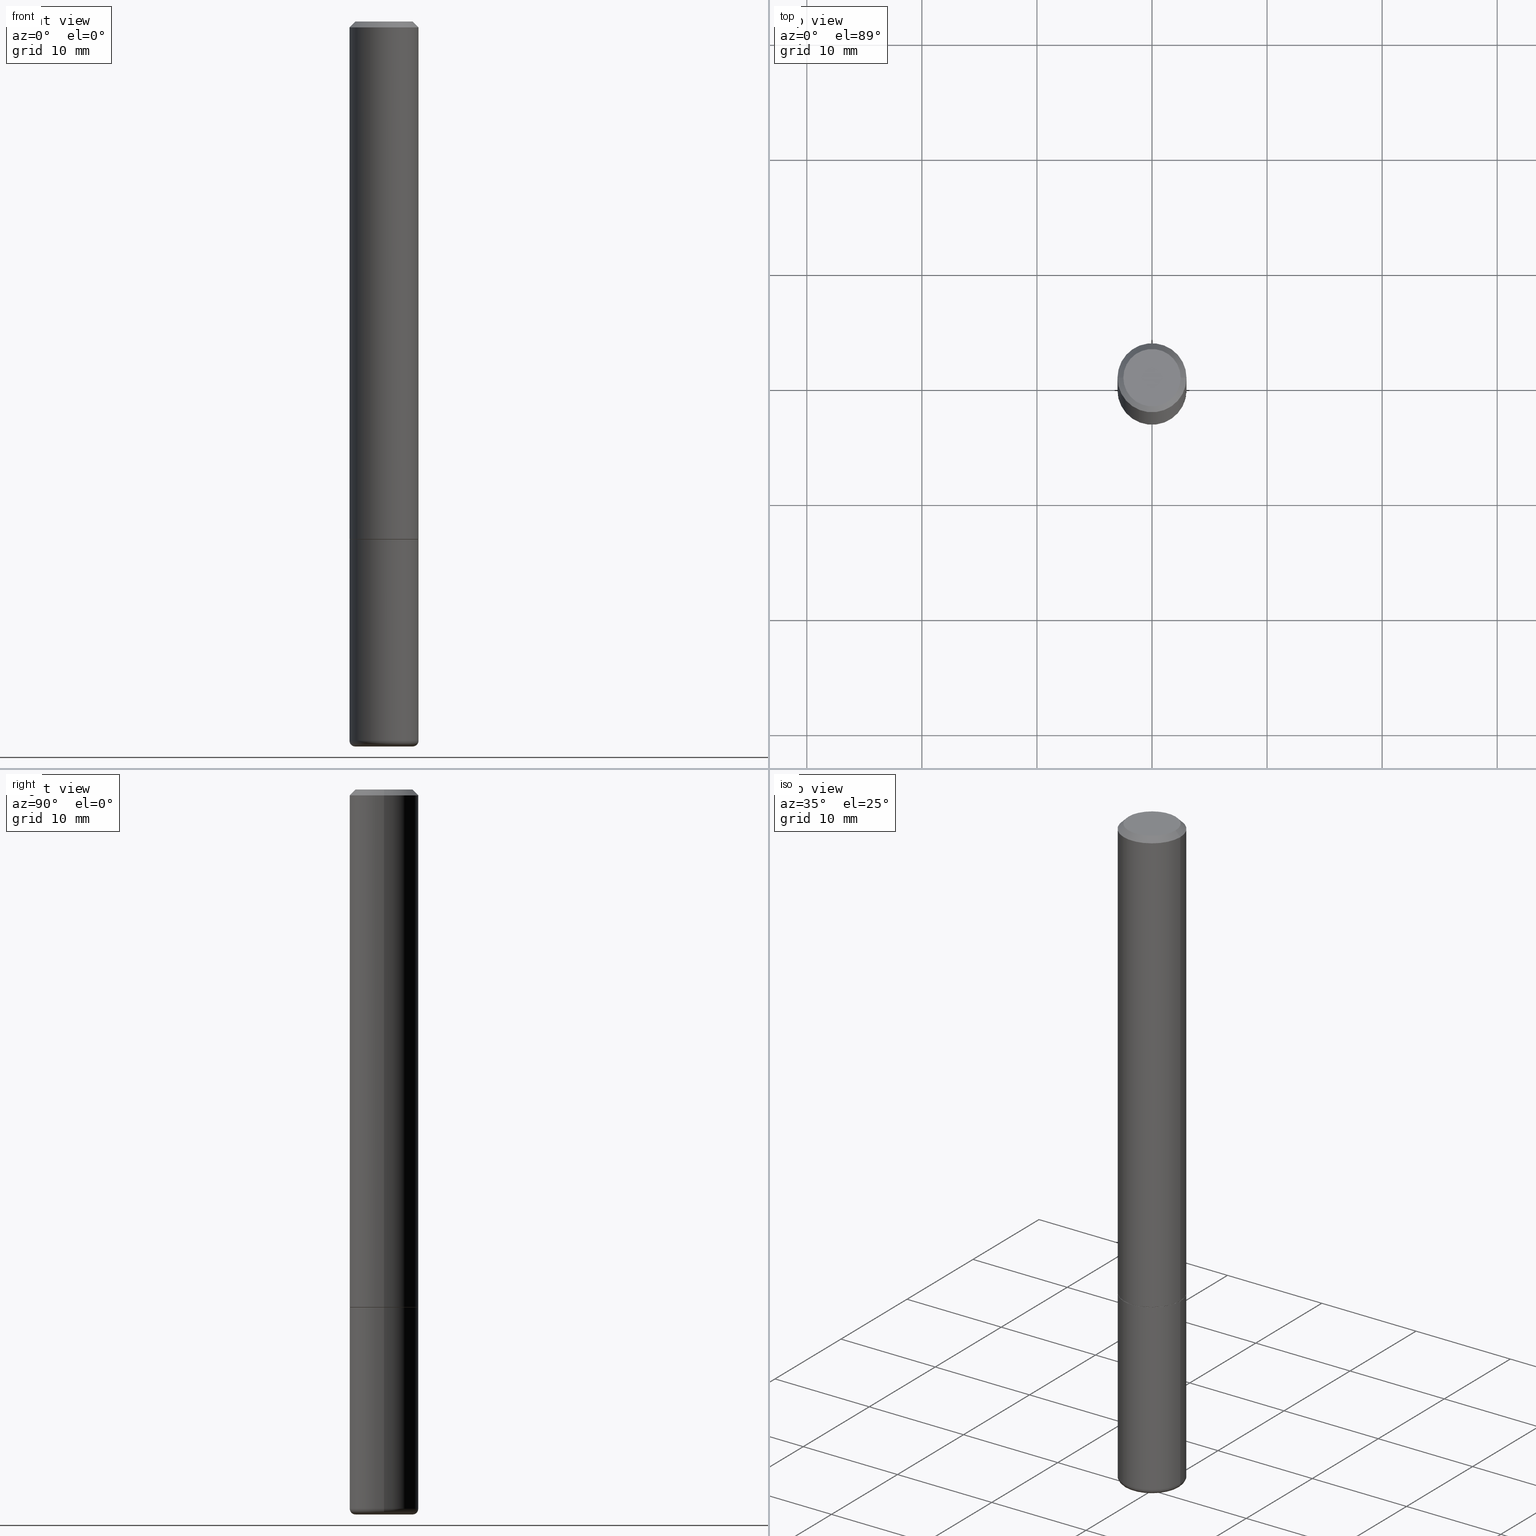
[diagram: canonical four-view strip — front | top / right | iso, engineering-drawing reading convention]
A machine part, canonical four-view strip (front | top / right | iso — engineering-drawing reading convention). The complete STEP part file that produces these views, byte-faithful:
ISO-10303-21;
HEADER;
FILE_DESCRIPTION (( 'STEP AP203' ),
    '1' );
FILE_NAME ('74326.STEP',
    '2024-03-06T15:08:03',
    ( '' ),
    ( '' ),
    'SwSTEP 2.0',
    'SolidWorks 2023',
    '' );
FILE_SCHEMA (( 'CONFIG_CONTROL_DESIGN' ));
ENDSEC;

DATA;
#1 = EDGE_CURVE ( 'NONE', #340, #39, #16, .T. ) ;
#2 = CC_DESIGN_PERSON_AND_ORGANIZATION_ASSIGNMENT ( #364, #300, ( #65 ) ) ;
#3 = DATE_TIME_ROLE ( 'classification_date' ) ;
#4 = EDGE_LOOP ( 'NONE', ( #10, #243, #399, #273 ) ) ;
#5 = PRODUCT ( '74326', '74326', '', ( #346 ) ) ;
#6 = ORIENTED_EDGE ( 'NONE', *, *, #185, .F. ) ;
#7 = CIRCLE ( 'NONE', #304, 0.09809999999999986786 ) ;
#8 = AXIS2_PLACEMENT_3D ( 'NONE', #19, #52, #182 ) ;
#9 = SECURITY_CLASSIFICATION ( '', '', #299 ) ;
#10 = ORIENTED_EDGE ( 'NONE', *, *, #274, .F. ) ;
#11 = ORIENTED_EDGE ( 'NONE', *, *, #292, .F. ) ;
#12 = LENGTH_MEASURE_WITH_UNIT ( LENGTH_MEASURE( 0.02539999999999999897 ), #176 );
#13 = COORDINATED_UNIVERSAL_TIME_OFFSET ( 5, 0, .BEHIND. ) ;
#14 = ORIENTED_EDGE ( 'NONE', *, *, #64, .T. ) ;
#15 = PERSON_AND_ORGANIZATION ( #336, #367 ) ;
#16 = CIRCLE ( 'NONE', #235, 0.01970000000000002999 ) ;
#17 = ORIENTED_EDGE ( 'NONE', *, *, #138, .T. ) ;
#18 = DIRECTION ( 'NONE',  ( -2.445468806185136597E-29, 3.491481338843145583E-15, 1.000000000000000000 ) ) ;
#19 = CARTESIAN_POINT ( 'NONE',  ( 4.890937612370288923E-31, -6.982962677686312563E-17, -0.02000000000000006287 ) ) ;
#20 = DIRECTION ( 'NONE',  ( -2.445468806185136597E-29, 3.491481338843145583E-15, 1.000000000000000000 ) ) ;
#21 = DIRECTION ( 'NONE',  ( 1.000000000000000000, -6.982962677686266711E-15, 0.000000000000000000 ) ) ;
#22 = VECTOR ( 'NONE', #192, 39.37007874015748143 ) ;
#23 = APPLICATION_CONTEXT ( 'configuration controlled 3d designs of mechanical parts and assemblies' ) ;
#24 = FACE_OUTER_BOUND ( 'NONE', #242, .T. ) ;
#25 = AXIS2_PLACEMENT_3D ( 'NONE', #250, #152, #49 ) ;
#26 = FACE_OUTER_BOUND ( 'NONE', #133, .T. ) ;
#27 = PRODUCT_DEFINITION_SHAPE ( 'NONE', 'NONE',  #92 ) ;
#28 = DIRECTION ( 'NONE',  ( 1.000000000000000000, -6.982962677686266711E-15, 4.876176775795936353E-29 ) ) ;
#29 = FACE_OUTER_BOUND ( 'NONE', #142, .T. ) ;
#30 = DIRECTION ( 'NONE',  ( -2.445468806185136877E-29, 3.491481338843145188E-15, 1.000000000000000000 ) ) ;
#31 = CARTESIAN_POINT ( 'NONE',  ( 0.1181000000000000383, -8.800544403136812319E-16, -0.02000000000000006287 ) ) ;
#32 = CIRCLE ( 'NONE', #50, 0.01970000000000002999 ) ;
#33 = EDGE_LOOP ( 'NONE', ( #71, #139, #371, #178 ) ) ;
#34 = EDGE_CURVE ( 'NONE', #308, #306, #119, .T. ) ;
#35 = APPROVAL_STATUS ( 'not_yet_approved' ) ;
#36 = PERSON_AND_ORGANIZATION ( #336, #367 ) ;
#37 = CIRCLE ( 'NONE', #136, 0.09840000000000000135 ) ;
#38 = APPROVAL_DATE_TIME ( #101, #239 ) ;
#39 = VERTEX_POINT ( 'NONE', #348 ) ;
#40 = VERTEX_POINT ( 'NONE', #158 ) ;
#41 = ORIENTED_EDGE ( 'NONE', *, *, #296, .T. ) ;
#42 = ORIENTED_EDGE ( 'NONE', *, *, #220, .F. ) ;
#43 = DIRECTION ( 'NONE',  ( -1.000000000000000000, 6.982962677686265922E-15, -4.876176775795935793E-29 ) ) ;
#44 = MANIFOLD_SOLID_BREP ( 'Body-Move/Copy2[2]', #84 ) ;
#45 = ADVANCED_FACE ( 'NONE', ( #323 ), #390, .T. ) ;
#46 = ORIENTED_EDGE ( 'NONE', *, *, #74, .T. ) ;
#47 = PERSON_AND_ORGANIZATION ( #336, #367 ) ;
#48 = DIRECTION ( 'NONE',  ( -1.000000000000000000, 6.982962677686266711E-15, 0.000000000000000000 ) ) ;
#49 = DIRECTION ( 'NONE',  ( 1.000000000000000000, -6.982962677686264344E-15, 0.000000000000000000 ) ) ;
#50 = AXIS2_PLACEMENT_3D ( 'NONE', #358, #191, #324 ) ;
#51 = CARTESIAN_POINT ( 'NONE',  ( 0.000000000000000000, 0.000000000000000000, 0.000000000000000000 ) ) ;
#52 = DIRECTION ( 'NONE',  ( -2.445468806185136597E-29, 3.491481338843145583E-15, 1.000000000000000000 ) ) ;
#53 = CARTESIAN_POINT ( 'NONE',  ( 4.332392537037588763E-29, -6.185508339894517569E-15, -1.771600000000000286 ) ) ;
#54 = LINE ( 'NONE', #350, #378 ) ;
#55 = DIRECTION ( 'NONE',  ( 1.000000000000000000, -6.982962677686264344E-15, 0.000000000000000000 ) ) ;
#56 = DIRECTION ( 'NONE',  ( -2.445468806185136597E-29, 3.491481338843145583E-15, 1.000000000000000000 ) ) ;
#57 = AXIS2_PLACEMENT_3D ( 'NONE', #95, #224, #28 ) ;
#58 = CARTESIAN_POINT ( 'NONE',  ( 0.1170999999999999958, -7.003213269451579029E-15, -1.771600000000000286 ) ) ;
#59 = CARTESIAN_POINT ( 'NONE',  ( 4.332392537037588763E-29, -6.185508339894517569E-15, -1.771600000000000286 ) ) ;
#60 = CARTESIAN_POINT ( 'NONE',  ( 0.1181000000000001354, -8.246878922347490515E-16, 5.758764772215007447E-30 ) ) ;
#61 = DIRECTION ( 'NONE',  ( -2.445468806185136597E-29, 3.491481338843145583E-15, 1.000000000000000000 ) ) ;
#62 = ORIENTED_EDGE ( 'NONE', *, *, #107, .T. ) ;
#63 = AXIS2_PLACEMENT_3D ( 'NONE', #317, #20, #256 ) ;
#64 = EDGE_CURVE ( 'NONE', #340, #272, #37, .T. ) ;
#65 = PRODUCT_DEFINITION_FORMATION_WITH_SPECIFIED_SOURCE ( 'ANY', '', #5, .NOT_KNOWN. ) ;
#66 = PERSON_AND_ORGANIZATION_ROLE ( 'design_supplier' ) ;
#67 = COORDINATED_UNIVERSAL_TIME_OFFSET ( 5, 0, .BEHIND. ) ;
#68 = AXIS2_PLACEMENT_3D ( 'NONE', #343, #283, #215 ) ;
#69 = CC_DESIGN_PERSON_AND_ORGANIZATION_ASSIGNMENT ( #395, #66, ( #65 ) ) ;
#70 = APPROVAL_STATUS ( 'not_yet_approved' ) ;
#71 = ORIENTED_EDGE ( 'NONE', *, *, #264, .F. ) ;
#72 = ORIENTED_EDGE ( 'NONE', *, *, #297, .F. ) ;
#73 = EDGE_LOOP ( 'NONE', ( #341, #113, #11, #210 ) ) ;
#74 = EDGE_CURVE ( 'NONE', #248, #106, #179, .T. ) ;
#75 = CC_DESIGN_PERSON_AND_ORGANIZATION_ASSIGNMENT ( #356, #194, ( #5 ) ) ;
#76 = CIRCLE ( 'NONE', #397, 0.1181000000000000383 ) ;
#77 = TOROIDAL_SURFACE ( 'NONE', #105, 0.09840000000000000135, 0.01970000000000002999 ) ;
#78 = ORIENTED_EDGE ( 'NONE', *, *, #155, .F. ) ;
#79 = CARTESIAN_POINT ( 'NONE',  ( 0.09809999999999986786, -7.765346469475334625E-16, 1.792775245842223582E-16 ) ) ;
#80 = ORIENTED_EDGE ( 'NONE', *, *, #34, .F. ) ;
#81 = FACE_OUTER_BOUND ( 'NONE', #302, .T. ) ;
#82 = CARTESIAN_POINT ( 'NONE',  ( 4.332392537037588763E-29, -6.185508339894517569E-15, -1.771600000000000286 ) ) ;
#83 = FACE_OUTER_BOUND ( 'NONE', #245, .T. ) ;
#84 = CLOSED_SHELL ( 'NONE', ( #384, #382, #298, #108, #45, #307, #132, #375 ) ) ;
#85 = CARTESIAN_POINT ( 'NONE',  ( -0.1180999999999999966, -6.549172690193302663E-15, -1.771600000000000286 ) ) ;
#86 = CYLINDRICAL_SURFACE ( 'NONE', #68, 0.1181000000000001354 ) ;
#87 = CARTESIAN_POINT ( 'NONE',  ( 4.890937612370288923E-31, -6.982962677686312563E-17, -0.02000000000000006287 ) ) ;
#88 = DIRECTION ( 'NONE',  ( 1.000000000000000000, -6.982962677686266711E-15, 4.876176775795936353E-29 ) ) ;
#89 = DIRECTION ( 'NONE',  ( 2.445468806185136597E-29, -3.491481338843145583E-15, -1.000000000000000000 ) ) ;
#90 = ORIENTED_EDGE ( 'NONE', *, *, #264, .T. ) ;
#91 = APPROVAL_STATUS ( 'not_yet_approved' ) ;
#92 = PRODUCT_DEFINITION ( 'UNKNOWN', '', #65, #237 ) ;
#93 = DIRECTION ( 'NONE',  ( -2.445468806185136597E-29, 3.491481338843145583E-15, 1.000000000000000000 ) ) ;
#94 = AXIS2_PLACEMENT_3D ( 'NONE', #385, #289, #231 ) ;
#95 = CARTESIAN_POINT ( 'NONE',  ( 0.000000000000000000, 0.000000000000000000, 0.000000000000000000 ) ) ;
#96 = LOCAL_TIME ( 10, 8, 3.000000000000000000, #241 ) ;
#97 = CARTESIAN_POINT ( 'NONE',  ( 4.890937612370288923E-31, -6.982962677686312563E-17, -0.02000000000000006287 ) ) ;
#98 = CARTESIAN_POINT ( 'NONE',  ( -4.384175940207923203E-45, 6.259441315597878405E-31, 1.792775245842172799E-16 ) ) ;
#99 = CALENDAR_DATE ( 2024, 6, 3 ) ;
#100 = TOROIDAL_SURFACE ( 'NONE', #393, 0.09840000000000000135, 0.01970000000000002999 ) ;
#101 = DATE_AND_TIME ( #328, #96 ) ;
#102 = APPROVAL_ROLE ( '' ) ;
#103 = VERTEX_POINT ( 'NONE', #122 ) ;
#104 = AXIS2_PLACEMENT_3D ( 'NONE', #82, #183, #55 ) ;
#105 = AXIS2_PLACEMENT_3D ( 'NONE', #117, #253, #198 ) ;
#106 = VERTEX_POINT ( 'NONE', #58 ) ;
#107 = EDGE_CURVE ( 'NONE', #103, #306, #254, .T. ) ;
#108 = ADVANCED_FACE ( 'NONE', ( #355 ), #111, .T. ) ;
#109 = ORIENTED_EDGE ( 'NONE', *, *, #64, .F. ) ;
#110 = EDGE_LOOP ( 'NONE', ( #175, #14, #262, #217 ) ) ;
#111 = CONICAL_SURFACE ( 'NONE', #410, 0.1181000000000000383, 0.7853981633974463916 ) ;
#112 = CONICAL_SURFACE ( 'NONE', #305, 0.1170999999999999958, 0.7853981633975251064 ) ;
#113 = ORIENTED_EDGE ( 'NONE', *, *, #274, .T. ) ;
#114 = CARTESIAN_POINT ( 'NONE',  ( 6.017320544499148018E-29, -8.591138982357444151E-15, -2.460600000000000342 ) ) ;
#115 = PLANE ( 'NONE',  #144 ) ;
#116 = DIRECTION ( 'NONE',  ( 0.7071067811866017516, -2.468850131082825040E-15, 0.7071067811864931718 ) ) ;
#117 = CARTESIAN_POINT ( 'NONE',  ( 6.017320544499148018E-29, -8.591138982357444151E-15, -2.460600000000000342 ) ) ;
#118 = CIRCLE ( 'NONE', #196, 0.1180999999999999966 ) ;
#119 = LINE ( 'NONE', #124, #164 ) ;
#120 = CARTESIAN_POINT ( 'NONE',  ( 0.000000000000000000, 0.000000000000000000, 0.000000000000000000 ) ) ;
#121 = ADVANCED_FACE ( 'NONE', ( #251 ), #287, .T. ) ;
#122 = CARTESIAN_POINT ( 'NONE',  ( -0.09809999999999986786, 7.199434520694538083E-16, 1.792775245842123495E-16 ) ) ;
#123 = LINE ( 'NONE', #258, #327 ) ;
#124 = CARTESIAN_POINT ( 'NONE',  ( -0.1181000000000001354, 8.391509709326792818E-16, -5.809262341591050090E-30 ) ) ;
#125 = CARTESIAN_POINT ( 'NONE',  ( 4.332392537037588763E-29, -6.185508339894517569E-15, -1.771600000000000286 ) ) ;
#126 = ORIENTED_EDGE ( 'NONE', *, *, #322, .F. ) ;
#127 = DIRECTION ( 'NONE',  ( 0.7071067811865461294, -7.319954787623251312E-15, -0.7071067811865489050 ) ) ;
#128 = APPROVAL_ROLE ( '' ) ;
#129 =( GEOMETRIC_REPRESENTATION_CONTEXT ( 3 ) GLOBAL_UNCERTAINTY_ASSIGNED_CONTEXT ( ( #267 ) ) GLOBAL_UNIT_ASSIGNED_CONTEXT ( ( #349, #407, #222 ) ) REPRESENTATION_CONTEXT ( 'NONE', 'WORKASPACE' ) );
#130 = CALENDAR_DATE ( 2024, 6, 3 ) ;
#131 = APPROVAL_DATE_TIME ( #332, #216 ) ;
#132 = ADVANCED_FACE ( 'NONE', ( #24 ), #280, .F. ) ;
#133 = EDGE_LOOP ( 'NONE', ( #126, #46, #17, #78 ) ) ;
#134 = ADVANCED_FACE ( 'NONE', ( #311 ), #100, .T. ) ;
#135 = ORIENTED_EDGE ( 'NONE', *, *, #1, .T. ) ;
#136 = AXIS2_PLACEMENT_3D ( 'NONE', #344, #180, #148 ) ;
#137 = LOCAL_TIME ( 10, 8, 3.000000000000000000, #13 ) ;
#138 = EDGE_CURVE ( 'NONE', #106, #275, #218, .T. ) ;
#139 = ORIENTED_EDGE ( 'NONE', *, *, #339, .T. ) ;
#140 = ORIENTED_EDGE ( 'NONE', *, *, #322, .T. ) ;
#141 = CARTESIAN_POINT ( 'NONE',  ( 6.065496279980994755E-29, -8.659921164732655335E-15, -2.480300000000000171 ) ) ;
#142 = EDGE_LOOP ( 'NONE', ( #401, #404 ) ) ;
#143 = AXIS2_PLACEMENT_3D ( 'NONE', #284, #388, #187 ) ;
#144 = AXIS2_PLACEMENT_3D ( 'NONE', #146, #386, #43 ) ;
#145 = VERTEX_POINT ( 'NONE', #85 ) ;
#146 = CARTESIAN_POINT ( 'NONE',  ( 6.850286386810217648E-16, 0.09809999999999986786, -2.528755570484034997E-16 ) ) ;
#147 = PRODUCT_RELATED_PRODUCT_CATEGORY ( 'detail', '', ( #5 ) ) ;
#148 = DIRECTION ( 'NONE',  ( 1.000000000000000000, -6.982962677686261977E-15, 0.000000000000000000 ) ) ;
#149 = FACE_OUTER_BOUND ( 'NONE', #110, .T. ) ;
#150 = EDGE_CURVE ( 'NONE', #106, #248, #278, .T. ) ;
#151 = DIRECTION ( 'NONE',  ( -1.000000000000000000, 7.105427357601014480E-15, 0.000000000000000000 ) ) ;
#152 = DIRECTION ( 'NONE',  ( -2.445468806185136597E-29, 3.491481338843145583E-15, 1.000000000000000000 ) ) ;
#153 = DIRECTION ( 'NONE',  ( 1.000000000000000000, -6.982962677686265922E-15, 4.884890577880254879E-29 ) ) ;
#154 = DIMENSIONAL_EXPONENTS ( 1.000000000000000000, 0.000000000000000000, 0.000000000000000000, 0.000000000000000000, 0.000000000000000000, 0.000000000000000000, 0.000000000000000000 ) ;
#155 = EDGE_CURVE ( 'NONE', #308, #275, #330, .T. ) ;
#156 = CC_DESIGN_APPROVAL ( #239, ( #92 ) ) ;
#157 = CC_DESIGN_PERSON_AND_ORGANIZATION_ASSIGNMENT ( #15, #203, ( #9 ) ) ;
#158 = CARTESIAN_POINT ( 'NONE',  ( 0.1180999999999999966, -7.010196232129265043E-15, -1.771600000000000286 ) ) ;
#159 = DIRECTION ( 'NONE',  ( -2.445468806185136597E-29, 3.491481338843145583E-15, 1.000000000000000000 ) ) ;
#160 = CARTESIAN_POINT ( 'NONE',  ( 0.1180999999999999966, -8.246878922347480654E-16, 5.758764772215000440E-30 ) ) ;
#161 = DIRECTION ( 'NONE',  ( -2.445468806185136597E-29, 3.491481338843145583E-15, 1.000000000000000000 ) ) ;
#162 = FACE_OUTER_BOUND ( 'NONE', #4, .T. ) ;
#163 = DIRECTION ( 'NONE',  ( 1.000000000000000000, -6.982962677686264344E-15, 0.000000000000000000 ) ) ;
#164 = VECTOR ( 'NONE', #259, 39.37007874015748143 ) ;
#165 = APPLICATION_CONTEXT ( 'configuration controlled 3d designs of mechanical parts and assemblies' ) ;
#166 = APPROVAL_PERSON_ORGANIZATION ( #204, #290, #102 ) ;
#167 = DATE_AND_TIME ( #99, #137 ) ;
#168 = CONICAL_SURFACE ( 'NONE', #25, 0.1170999999999999958, 0.7853981633975251064 ) ;
#169 = DATE_TIME_ROLE ( 'creation_date' ) ;
#170 = ORIENTED_EDGE ( 'NONE', *, *, #138, .F. ) ;
#171 = ORIENTED_EDGE ( 'NONE', *, *, #201, .F. ) ;
#172 = EDGE_LOOP ( 'NONE', ( #80, #337, #234, #277 ) ) ;
#173 = AXIS2_PLACEMENT_3D ( 'NONE', #260, #354, #413 ) ;
#174 = AXIS2_PLACEMENT_3D ( 'NONE', #279, #405, #184 ) ;
#175 = ORIENTED_EDGE ( 'NONE', *, *, #1, .F. ) ;
#176 =( LENGTH_UNIT ( ) NAMED_UNIT ( * ) SI_UNIT ( $, .METRE. ) );
#177 = ORIENTED_EDGE ( 'NONE', *, *, #150, .T. ) ;
#178 = ORIENTED_EDGE ( 'NONE', *, *, #107, .F. ) ;
#179 = CIRCLE ( 'NONE', #94, 0.1170999999999999958 ) ;
#180 = DIRECTION ( 'NONE',  ( -2.445468806185136597E-29, 3.491481338843145583E-15, 1.000000000000000000 ) ) ;
#181 = CARTESIAN_POINT ( 'NONE',  ( 4.332392537037588763E-29, -6.185508339894517569E-15, -1.771600000000000286 ) ) ;
#182 = DIRECTION ( 'NONE',  ( 1.000000000000000000, -6.982962677686266711E-15, 0.000000000000000000 ) ) ;
#183 = DIRECTION ( 'NONE',  ( -2.445468806185136597E-29, 3.491481338843145583E-15, 1.000000000000000000 ) ) ;
#184 = DIRECTION ( 'NONE',  ( 1.000000000000000000, 0.000000000000000000, 0.000000000000000000 ) ) ;
#185 = EDGE_CURVE ( 'NONE', #272, #340, #211, .T. ) ;
#186 = DIRECTION ( 'NONE',  ( -2.445468806185136597E-29, 3.491481338843145583E-15, 1.000000000000000000 ) ) ;
#187 = DIRECTION ( 'NONE',  ( 1.000000000000000000, -6.982962677686261977E-15, 0.000000000000000000 ) ) ;
#188 = DIRECTION ( 'NONE',  ( -2.445468806185136597E-29, 3.491481338843145583E-15, 1.000000000000000000 ) ) ;
#189 = CC_DESIGN_SECURITY_CLASSIFICATION ( #9, ( #65 ) ) ;
#190 = CARTESIAN_POINT ( 'NONE',  ( 4.890937612370288923E-31, -6.982962677686312563E-17, -0.02000000000000006287 ) ) ;
#191 = DIRECTION ( 'NONE',  ( -6.982962677686266711E-15, -1.000000000000000000, 3.491481338843145583E-15 ) ) ;
#192 = DIRECTION ( 'NONE',  ( -2.445468806185136877E-29, 3.491481338843145188E-15, 1.000000000000000000 ) ) ;
#193 = PLANE ( 'NONE',  #295 ) ;
#194 = PERSON_AND_ORGANIZATION_ROLE ( 'design_owner' ) ;
#195 = VERTEX_POINT ( 'NONE', #227 ) ;
#196 = AXIS2_PLACEMENT_3D ( 'NONE', #415, #186, #286 ) ;
#197 = LOCAL_TIME ( 10, 8, 3.000000000000000000, #67 ) ;
#198 = DIRECTION ( 'NONE',  ( 1.000000000000000000, -6.982962677686270655E-15, 4.883557194083114583E-29 ) ) ;
#199 = MANIFOLD_SOLID_BREP ( 'Body-Move/Copy2[1]', #366 ) ;
#200 = EDGE_CURVE ( 'NONE', #195, #40, #319, .T. ) ;
#201 = EDGE_CURVE ( 'NONE', #275, #244, #325, .T. ) ;
#202 = ADVANCED_FACE ( 'NONE', ( #162 ), #359, .T. ) ;
#203 = PERSON_AND_ORGANIZATION_ROLE ( 'classification_officer' ) ;
#204 = PERSON_AND_ORGANIZATION ( #336, #367 ) ;
#205 = CIRCLE ( 'NONE', #380, 0.1180999999999999966 ) ;
#206 = VECTOR ( 'NONE', #127, 39.37007874015748143 ) ;
#207 = COORDINATED_UNIVERSAL_TIME_OFFSET ( 5, 0, .BEHIND. ) ;
#208 = EDGE_LOOP ( 'NONE', ( #177, #140, #72, #170 ) ) ;
#209 = ORIENTED_EDGE ( 'NONE', *, *, #34, .T. ) ;
#210 = ORIENTED_EDGE ( 'NONE', *, *, #200, .F. ) ;
#211 = CIRCLE ( 'NONE', #143, 0.09840000000000000135 ) ;
#212 = DIRECTION ( 'NONE',  ( 2.438088387897960049E-29, -3.491481338843145188E-15, -1.000000000000000000 ) ) ;
#213 = AXIS2_PLACEMENT_3D ( 'NONE', #141, #212, #377 ) ;
#214 = EDGE_LOOP ( 'NONE', ( #6, #109 ) ) ;
#215 = DIRECTION ( 'NONE',  ( 1.000000000000000000, -6.982962677686266711E-15, 4.876176775795936353E-29 ) ) ;
#216 = APPROVAL ( #70, 'UNSPECIFIED' ) ;
#217 = ORIENTED_EDGE ( 'NONE', *, *, #238, .F. ) ;
#218 = LINE ( 'NONE', #414, #345 ) ;
#219 = AXIS2_PLACEMENT_3D ( 'NONE', #223, #159, #153 ) ;
#220 = EDGE_CURVE ( 'NONE', #244, #306, #76, .T. ) ;
#221 = CARTESIAN_POINT ( 'NONE',  ( -0.1181000000000000383, 7.548582654578852602E-16, -0.02000000000000006287 ) ) ;
#222 =( NAMED_UNIT ( * ) SI_UNIT ( $, .STERADIAN. ) SOLID_ANGLE_UNIT ( ) );
#223 = CARTESIAN_POINT ( 'NONE',  ( -4.384175940207923203E-45, 6.259441315597878405E-31, 1.792775245842172799E-16 ) ) ;
#224 = DIRECTION ( 'NONE',  ( -2.445468806185136597E-29, 3.491481338843145583E-15, 1.000000000000000000 ) ) ;
#225 = APPLICATION_PROTOCOL_DEFINITION ( 'international standard', 'config_control_design', 1994, #165 ) ;
#226 = CARTESIAN_POINT ( 'NONE',  ( 0.1181000000000000383, -8.800544403136812319E-16, -0.02000000000000006287 ) ) ;
#227 = CARTESIAN_POINT ( 'NONE',  ( 0.1181000000000000105, -9.415826874592192413E-15, -2.460600000000000342 ) ) ;
#228 = APPROVAL_ROLE ( '' ) ;
#229 = DIRECTION ( 'NONE',  ( 1.000000000000000000, -6.982962677686273021E-15, 0.000000000000000000 ) ) ;
#230 = LOCAL_TIME ( 10, 8, 3.000000000000000000, #247 ) ;
#231 = DIRECTION ( 'NONE',  ( 1.000000000000000000, -6.982962677686264344E-15, 0.000000000000000000 ) ) ;
#232 = CARTESIAN_POINT ( 'NONE',  ( 6.017320544499148018E-29, -8.591138982357444151E-15, -2.460600000000000342 ) ) ;
#233 = CC_DESIGN_DATE_AND_TIME_ASSIGNMENT ( #363, #169, ( #92 ) ) ;
#234 = ORIENTED_EDGE ( 'NONE', *, *, #201, .T. ) ;
#235 = AXIS2_PLACEMENT_3D ( 'NONE', #406, #411, #151 ) ;
#236 = APPROVAL_PERSON_ORGANIZATION ( #36, #216, #128 ) ;
#237 = DESIGN_CONTEXT ( 'detailed design', #165, 'design' ) ;
#238 = EDGE_CURVE ( 'NONE', #39, #195, #205, .T. ) ;
#239 = APPROVAL ( #91, 'UNSPECIFIED' ) ;
#240 = CALENDAR_DATE ( 2024, 6, 3 ) ;
#241 = COORDINATED_UNIVERSAL_TIME_OFFSET ( 5, 0, .BEHIND. ) ;
#242 = EDGE_LOOP ( 'NONE', ( #396, #374 ) ) ;
#243 = ORIENTED_EDGE ( 'NONE', *, *, #238, .T. ) ;
#244 = VERTEX_POINT ( 'NONE', #226 ) ;
#245 = EDGE_LOOP ( 'NONE', ( #41, #90 ) ) ;
#246 = FACE_OUTER_BOUND ( 'NONE', #208, .T. ) ;
#247 = COORDINATED_UNIVERSAL_TIME_OFFSET ( 5, 0, .BEHIND. ) ;
#248 = VERTEX_POINT ( 'NONE', #255 ) ;
#249 = DIRECTION ( 'NONE',  ( -2.445468806185136597E-29, 3.491481338843145583E-15, 1.000000000000000000 ) ) ;
#250 = CARTESIAN_POINT ( 'NONE',  ( 4.332392537037588763E-29, -6.185508339894517569E-15, -1.771600000000000286 ) ) ;
#251 = FACE_OUTER_BOUND ( 'NONE', #73, .T. ) ;
#252 = AXIS2_PLACEMENT_3D ( 'NONE', #53, #351, #282 ) ;
#253 = DIRECTION ( 'NONE',  ( -2.445468806185136597E-29, 3.491481338843145583E-15, 1.000000000000000000 ) ) ;
#254 = LINE ( 'NONE', #221, #403 ) ;
#255 = CARTESIAN_POINT ( 'NONE',  ( -0.1170999999999999958, -5.348164341971217190E-15, -1.771600000000000286 ) ) ;
#256 = DIRECTION ( 'NONE',  ( 1.000000000000000000, -6.982962677686267499E-15, 0.000000000000000000 ) ) ;
#257 = PERSON_AND_ORGANIZATION ( #336, #367 ) ;
#258 = CARTESIAN_POINT ( 'NONE',  ( -0.1170999999999999958, -5.353462796319440381E-15, -1.771600000000000286 ) ) ;
#259 = DIRECTION ( 'NONE',  ( -2.445468806185136877E-29, 3.491481338843145188E-15, 1.000000000000000000 ) ) ;
#260 = CARTESIAN_POINT ( 'NONE',  ( 4.329947068231403160E-29, -6.182016858555674562E-15, -1.770600000000000174 ) ) ;
#261 = CC_DESIGN_APPROVAL ( #290, ( #65 ) ) ;
#262 = ORIENTED_EDGE ( 'NONE', *, *, #335, .T. ) ;
#263 = DIRECTION ( 'NONE',  ( 1.000000000000000000, -6.982962677686273021E-15, 0.000000000000000000 ) ) ;
#264 = EDGE_CURVE ( 'NONE', #400, #103, #270, .T. ) ;
#265 = VECTOR ( 'NONE', #30, 39.37007874015748143 ) ;
#266 = CIRCLE ( 'NONE', #357, 0.1180999999999999966 ) ;
#267 = UNCERTAINTY_MEASURE_WITH_UNIT (LENGTH_MEASURE( 1.000000000000000082E-05 ), #349, 'distance_accuracy_value', 'NONE');
#268 = DATE_AND_TIME ( #329, #398 ) ;
#269 = ORIENTED_EDGE ( 'NONE', *, *, #339, .F. ) ;
#270 = CIRCLE ( 'NONE', #219, 0.09809999999999986786 ) ;
#271 = CIRCLE ( 'NONE', #8, 0.1181000000000000383 ) ;
#272 = VERTEX_POINT ( 'NONE', #318 ) ;
#273 = ORIENTED_EDGE ( 'NONE', *, *, #409, .F. ) ;
#274 = EDGE_CURVE ( 'NONE', #39, #145, #54, .T. ) ;
#275 = VERTEX_POINT ( 'NONE', #387 ) ;
#276 = DIRECTION ( 'NONE',  ( -2.445468806185136597E-29, 3.491481338843145583E-15, 1.000000000000000000 ) ) ;
#277 = ORIENTED_EDGE ( 'NONE', *, *, #352, .F. ) ;
#278 = CIRCLE ( 'NONE', #104, 0.1170999999999999958 ) ;
#279 = CARTESIAN_POINT ( 'NONE',  ( 0.000000000000000000, 0.000000000000000000, 0.000000000000000000 ) ) ;
#280 = PLANE ( 'NONE',  #252 ) ;
#281 = DIRECTION ( 'NONE',  ( 1.000000000000000000, -6.982962677686265133E-15, 0.000000000000000000 ) ) ;
#282 = DIRECTION ( 'NONE',  ( 1.000000000000000000, -6.982962677686265922E-15, 4.876176775795935793E-29 ) ) ;
#283 = DIRECTION ( 'NONE',  ( -2.445468806185136597E-29, 3.491481338843145583E-15, 1.000000000000000000 ) ) ;
#284 = CARTESIAN_POINT ( 'NONE',  ( 6.065496279980994755E-29, -8.659921164732655335E-15, -2.480300000000000171 ) ) ;
#285 = CONICAL_SURFACE ( 'NONE', #362, 0.1181000000000000383, 0.7853981633974463916 ) ;
#286 = DIRECTION ( 'NONE',  ( 1.000000000000000000, -6.982962677686265133E-15, 0.000000000000000000 ) ) ;
#287 = CYLINDRICAL_SURFACE ( 'NONE', #294, 0.1180999999999999966 ) ;
#288 = DIRECTION ( 'NONE',  ( -1.000000000000000000, 6.982962677686266711E-15, 0.000000000000000000 ) ) ;
#289 = DIRECTION ( 'NONE',  ( -2.445468806185136597E-29, 3.491481338843145583E-15, 1.000000000000000000 ) ) ;
#290 = APPROVAL ( #35, 'UNSPECIFIED' ) ;
#291 = DIRECTION ( 'NONE',  ( -2.445468806185136877E-29, 3.491481338843145188E-15, 1.000000000000000000 ) ) ;
#292 = EDGE_CURVE ( 'NONE', #40, #145, #118, .T. ) ;
#293 = DIRECTION ( 'NONE',  ( 1.000000000000000000, -6.982962677686265922E-15, 4.884890577880254879E-29 ) ) ;
#294 = AXIS2_PLACEMENT_3D ( 'NONE', #51, #18, #88 ) ;
#295 = AXIS2_PLACEMENT_3D ( 'NONE', #125, #391, #360 ) ;
#296 = EDGE_CURVE ( 'NONE', #103, #400, #7, .T. ) ;
#297 = EDGE_CURVE ( 'NONE', #275, #308, #361, .T. ) ;
#298 = ADVANCED_FACE ( 'NONE', ( #315 ), #285, .T. ) ;
#299 = SECURITY_CLASSIFICATION_LEVEL ( 'unclassified' ) ;
#300 = PERSON_AND_ORGANIZATION_ROLE ( 'creator' ) ;
#301 = APPROVAL_DATE_TIME ( #167, #290 ) ;
#302 = EDGE_LOOP ( 'NONE', ( #369, #209, #42, #171 ) ) ;
#303 = ORIENTED_EDGE ( 'NONE', *, *, #335, .F. ) ;
#304 = AXIS2_PLACEMENT_3D ( 'NONE', #98, #417, #293 ) ;
#305 = AXIS2_PLACEMENT_3D ( 'NONE', #59, #61, #163 ) ;
#306 = VERTEX_POINT ( 'NONE', #321 ) ;
#307 = ADVANCED_FACE ( 'NONE', ( #26 ), #112, .T. ) ;
#308 = VERTEX_POINT ( 'NONE', #347 ) ;
#309 = EDGE_LOOP ( 'NONE', ( #269, #372, #62, #373 ) ) ;
#310 = APPLICATION_PROTOCOL_DEFINITION ( 'international standard', 'config_control_design', 1994, #23 ) ;
#311 = FACE_OUTER_BOUND ( 'NONE', #416, .T. ) ;
#312 = AXIS2_PLACEMENT_3D ( 'NONE', #120, #56, #383 ) ;
#313 = AXIS2_PLACEMENT_3D ( 'NONE', #181, #276, #281 ) ;
#314 = DIRECTION ( 'NONE',  ( -0.7071067811865461294, 2.468850131082242072E-15, -0.7071067811865489050 ) ) ;
#315 = FACE_OUTER_BOUND ( 'NONE', #33, .T. ) ;
#316 = ADVANCED_BREP_SHAPE_REPRESENTATION ( '74326', ( #199, #44, #174 ), #129 ) ;
#317 = CARTESIAN_POINT ( 'NONE',  ( 4.329947068231403160E-29, -6.182016858555674562E-15, -1.770600000000000174 ) ) ;
#318 = CARTESIAN_POINT ( 'NONE',  ( 0.09840000000000000135, -9.347044692216982806E-15, -2.480300000000000171 ) ) ;
#319 = LINE ( 'NONE', #160, #22 ) ;
#320 = CIRCLE ( 'NONE', #313, 0.1180999999999999966 ) ;
#321 = CARTESIAN_POINT ( 'NONE',  ( -0.1181000000000000383, 7.548582654578852602E-16, -0.02000000000000006287 ) ) ;
#322 = EDGE_CURVE ( 'NONE', #248, #308, #123, .T. ) ;
#323 = FACE_OUTER_BOUND ( 'NONE', #172, .T. ) ;
#324 = DIRECTION ( 'NONE',  ( 1.000000000000000000, -6.982962677686218590E-15, 0.000000000000000000 ) ) ;
#325 = LINE ( 'NONE', #60, #265 ) ;
#326 = LINE ( 'NONE', #31, #206 ) ;
#327 = VECTOR ( 'NONE', #418, 39.37007874015748854 ) ;
#328 = CALENDAR_DATE ( 2024, 6, 3 ) ;
#329 = CALENDAR_DATE ( 2024, 6, 3 ) ;
#330 = CIRCLE ( 'NONE', #63, 0.1181000000000002187 ) ;
#331 = EDGE_CURVE ( 'NONE', #195, #39, #266, .T. ) ;
#332 = DATE_AND_TIME ( #130, #230 ) ;
#333 = SHAPE_DEFINITION_REPRESENTATION ( #27, #316 ) ;
#334 = ORIENTED_EDGE ( 'NONE', *, *, #331, .F. ) ;
#335 = EDGE_CURVE ( 'NONE', #272, #195, #32, .T. ) ;
#336 = PERSON ( 'UNSPECIFIED', 'UNSPECIFIED', 'UNSPECIFIED', ('UNSPECIFIED'), ('UNSPECIFIED'), ('UNSPECIFIED') ) ;
#337 = ORIENTED_EDGE ( 'NONE', *, *, #155, .T. ) ;
#338 = ADVANCED_FACE ( 'NONE', ( #29 ), #193, .F. ) ;
#339 = EDGE_CURVE ( 'NONE', #400, #244, #326, .T. ) ;
#340 = VERTEX_POINT ( 'NONE', #392 ) ;
#341 = ORIENTED_EDGE ( 'NONE', *, *, #331, .T. ) ;
#342 = ORIENTED_EDGE ( 'NONE', *, *, #185, .T. ) ;
#343 = CARTESIAN_POINT ( 'NONE',  ( 0.000000000000000000, 0.000000000000000000, 0.000000000000000000 ) ) ;
#344 = CARTESIAN_POINT ( 'NONE',  ( 6.065496279980994755E-29, -8.659921164732655335E-15, -2.480300000000000171 ) ) ;
#345 = VECTOR ( 'NONE', #116, 39.37007874015748854 ) ;
#346 = MECHANICAL_CONTEXT ( 'NONE', #23, 'mechanical' ) ;
#347 = CARTESIAN_POINT ( 'NONE',  ( -0.1181000000000002187, -2.286772271733587183E-15, -1.770600000000000174 ) ) ;
#348 = CARTESIAN_POINT ( 'NONE',  ( -0.1181000000000000105, -7.751988011424766742E-15, -2.460600000000000342 ) ) ;
#349 =( CONVERSION_BASED_UNIT ( 'INCH', #12 ) LENGTH_UNIT ( ) NAMED_UNIT ( #154 ) );
#350 = CARTESIAN_POINT ( 'NONE',  ( -0.1180999999999999966, 8.391509709326782957E-16, -5.809262341591043784E-30 ) ) ;
#351 = DIRECTION ( 'NONE',  ( -2.438088387897960049E-29, 3.491481338843145188E-15, 1.000000000000000000 ) ) ;
#352 = EDGE_CURVE ( 'NONE', #306, #244, #271, .T. ) ;
#353 = CC_DESIGN_DATE_AND_TIME_ASSIGNMENT ( #268, #3, ( #9 ) ) ;
#354 = DIRECTION ( 'NONE',  ( -2.445468806185136597E-29, 3.491481338843145583E-15, 1.000000000000000000 ) ) ;
#355 = FACE_OUTER_BOUND ( 'NONE', #309, .T. ) ;
#356 = PERSON_AND_ORGANIZATION ( #336, #367 ) ;
#357 = AXIS2_PLACEMENT_3D ( 'NONE', #389, #93, #229 ) ;
#358 = CARTESIAN_POINT ( 'NONE',  ( 0.09840000000000000135, -9.278262509841773199E-15, -2.460600000000000342 ) ) ;
#359 = CYLINDRICAL_SURFACE ( 'NONE', #312, 0.1180999999999999966 ) ;
#360 = DIRECTION ( 'NONE',  ( -1.000000000000000000, 6.982962677686265922E-15, -4.876176775795935793E-29 ) ) ;
#361 = CIRCLE ( 'NONE', #173, 0.1181000000000002187 ) ;
#362 = AXIS2_PLACEMENT_3D ( 'NONE', #97, #89, #288 ) ;
#363 = DATE_AND_TIME ( #240, #197 ) ;
#364 = PERSON_AND_ORGANIZATION ( #336, #367 ) ;
#365 = CC_DESIGN_PERSON_AND_ORGANIZATION_ASSIGNMENT ( #47, #402, ( #92 ) ) ;
#366 = CLOSED_SHELL ( 'NONE', ( #121, #134, #338, #202, #368, #370 ) ) ;
#367 = ORGANIZATION ( 'UNSPECIFIED', 'UNSPECIFIED', '' ) ;
#368 = ADVANCED_FACE ( 'NONE', ( #149 ), #77, .T. ) ;
#369 = ORIENTED_EDGE ( 'NONE', *, *, #297, .T. ) ;
#370 = ADVANCED_FACE ( 'NONE', ( #408 ), #381, .T. ) ;
#371 = ORIENTED_EDGE ( 'NONE', *, *, #220, .T. ) ;
#372 = ORIENTED_EDGE ( 'NONE', *, *, #296, .F. ) ;
#373 = ORIENTED_EDGE ( 'NONE', *, *, #352, .T. ) ;
#374 = ORIENTED_EDGE ( 'NONE', *, *, #74, .F. ) ;
#375 = ADVANCED_FACE ( 'NONE', ( #83 ), #115, .F. ) ;
#376 = DIRECTION ( 'NONE',  ( 1.000000000000000000, -6.982962677686270655E-15, 4.883557194083114583E-29 ) ) ;
#377 = DIRECTION ( 'NONE',  ( -1.000000000000000000, 6.982962677686265922E-15, -4.876176775795935793E-29 ) ) ;
#378 = VECTOR ( 'NONE', #291, 39.37007874015748143 ) ;
#379 = DIRECTION ( 'NONE',  ( 2.445468806185136597E-29, -3.491481338843145583E-15, -1.000000000000000000 ) ) ;
#380 = AXIS2_PLACEMENT_3D ( 'NONE', #232, #188, #263 ) ;
#381 = PLANE ( 'NONE',  #213 ) ;
#382 = ADVANCED_FACE ( 'NONE', ( #81 ), #86, .T. ) ;
#383 = DIRECTION ( 'NONE',  ( 1.000000000000000000, -6.982962677686266711E-15, 4.876176775795936353E-29 ) ) ;
#384 = ADVANCED_FACE ( 'NONE', ( #246 ), #168, .T. ) ;
#385 = CARTESIAN_POINT ( 'NONE',  ( 4.332392537037588763E-29, -6.185508339894517569E-15, -1.771600000000000286 ) ) ;
#386 = DIRECTION ( 'NONE',  ( 2.438088387897960049E-29, -3.491481338843145188E-15, -1.000000000000000000 ) ) ;
#387 = CARTESIAN_POINT ( 'NONE',  ( 0.1181000000000002187, -7.006704750790424403E-15, -1.770600000000000174 ) ) ;
#388 = DIRECTION ( 'NONE',  ( -2.445468806185136597E-29, 3.491481338843145583E-15, 1.000000000000000000 ) ) ;
#389 = CARTESIAN_POINT ( 'NONE',  ( 6.017320544499148018E-29, -8.591138982357444151E-15, -2.460600000000000342 ) ) ;
#390 = CYLINDRICAL_SURFACE ( 'NONE', #57, 0.1181000000000001354 ) ;
#391 = DIRECTION ( 'NONE',  ( 2.438088387897960049E-29, -3.491481338843145188E-15, -1.000000000000000000 ) ) ;
#392 = CARTESIAN_POINT ( 'NONE',  ( -0.09840000000000000135, -7.856367562084741595E-15, -2.480300000000000171 ) ) ;
#393 = AXIS2_PLACEMENT_3D ( 'NONE', #114, #249, #376 ) ;
#394 = CC_DESIGN_APPROVAL ( #216, ( #9 ) ) ;
#395 = PERSON_AND_ORGANIZATION ( #336, #367 ) ;
#396 = ORIENTED_EDGE ( 'NONE', *, *, #150, .F. ) ;
#397 = AXIS2_PLACEMENT_3D ( 'NONE', #87, #161, #21 ) ;
#398 = LOCAL_TIME ( 10, 8, 3.000000000000000000, #207 ) ;
#399 = ORIENTED_EDGE ( 'NONE', *, *, #200, .T. ) ;
#400 = VERTEX_POINT ( 'NONE', #79 ) ;
#401 = ORIENTED_EDGE ( 'NONE', *, *, #292, .T. ) ;
#402 = PERSON_AND_ORGANIZATION_ROLE ( 'creator' ) ;
#403 = VECTOR ( 'NONE', #314, 39.37007874015748143 ) ;
#404 = ORIENTED_EDGE ( 'NONE', *, *, #409, .T. ) ;
#405 = DIRECTION ( 'NONE',  ( 0.000000000000000000, 0.000000000000000000, 1.000000000000000000 ) ) ;
#406 = CARTESIAN_POINT ( 'NONE',  ( -0.09840000000000000135, -7.891964930369506840E-15, -2.460600000000000342 ) ) ;
#407 =( NAMED_UNIT ( * ) PLANE_ANGLE_UNIT ( ) SI_UNIT ( $, .RADIAN. ) );
#408 = FACE_OUTER_BOUND ( 'NONE', #214, .T. ) ;
#409 = EDGE_CURVE ( 'NONE', #145, #40, #320, .T. ) ;
#410 = AXIS2_PLACEMENT_3D ( 'NONE', #190, #379, #48 ) ;
#411 = DIRECTION ( 'NONE',  ( 7.105427357601001859E-15, 1.000000000000000000, -3.491481338843145583E-15 ) ) ;
#412 = APPROVAL_PERSON_ORGANIZATION ( #257, #239, #228 ) ;
#413 = DIRECTION ( 'NONE',  ( 1.000000000000000000, -6.982962677686267499E-15, 0.000000000000000000 ) ) ;
#414 = CARTESIAN_POINT ( 'NONE',  ( 0.1170999999999999958, -7.003213269451579029E-15, -1.771600000000000286 ) ) ;
#415 = CARTESIAN_POINT ( 'NONE',  ( 4.332392537037588763E-29, -6.185508339894517569E-15, -1.771600000000000286 ) ) ;
#416 = EDGE_LOOP ( 'NONE', ( #342, #135, #334, #303 ) ) ;
#417 = DIRECTION ( 'NONE',  ( -2.445468806185136597E-29, 3.491481338843145583E-15, 1.000000000000000000 ) ) ;
#418 = DIRECTION ( 'NONE',  ( -0.7071067811866017516, 7.493145998870549798E-15, 0.7071067811864931718 ) ) ;
ENDSEC;
END-ISO-10303-21;
